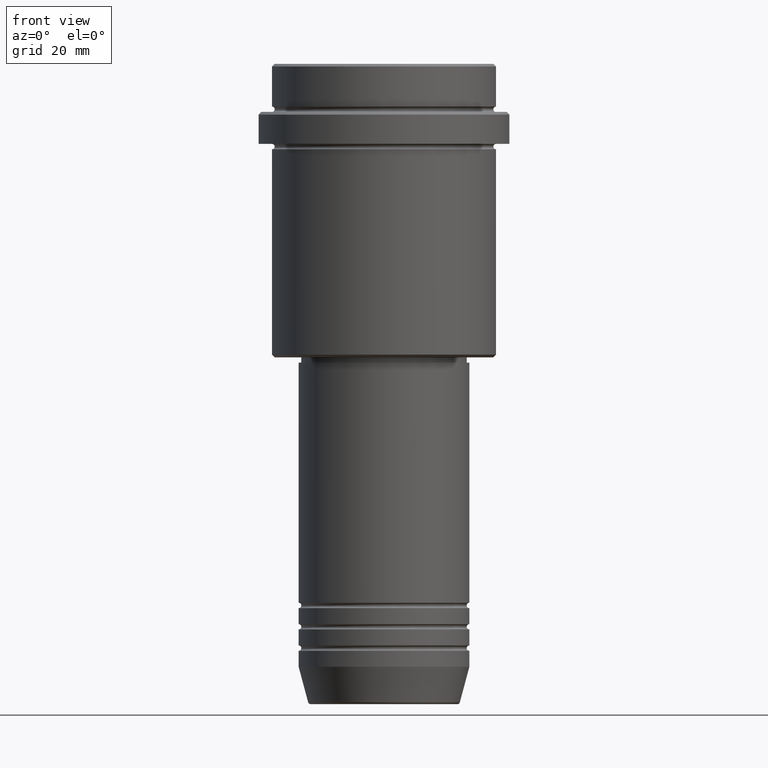
[diagram: clean part render]
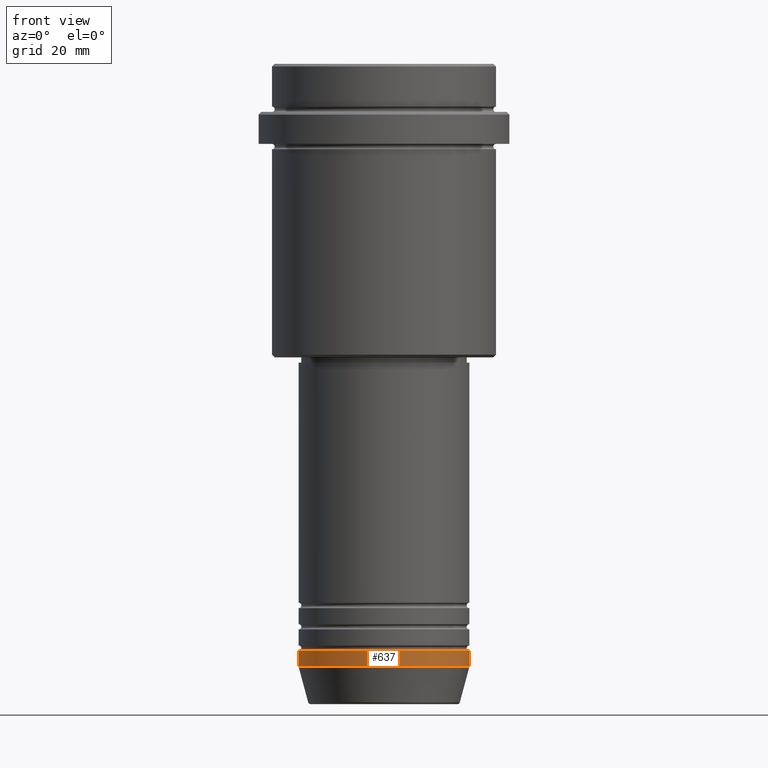
[diagram: same view with one face highlighted and labeled with its STEP entity id]
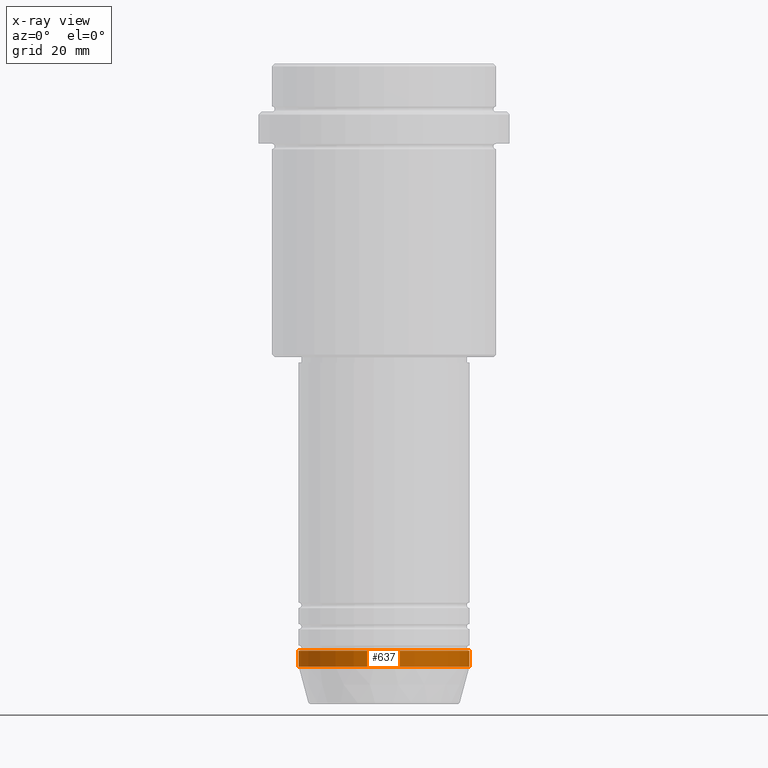
[diagram: x-ray of the same camera — body ghosted, the highlighted face saturated]
A machine part, front view. The second image highlights one B-rep face of the part: STEP entity #637.
The next image is the same camera in x-ray: the body ghosted, the highlighted face saturated — about 0% of this face is hidden behind the body in this view.
In plain terms, the highlighted cylindrical surface (partial cylindrical patch) has radius 16 mm, axis along (-0, -0, 1).
Its self-contained STEP definition (entity closure, byte-faithful):
#3 = DIRECTION ( 'NONE',  ( -0.000000000000000000, -0.000000000000000000, 1.000000000000000000 ) ) ;
#7 = ORIENTED_EDGE ( 'NONE', *, *, #71, .F. ) ;
#10 = DIRECTION ( 'NONE',  ( -0.000000000000000000, -0.000000000000000000, 1.000000000000000000 ) ) ;
#71 = EDGE_CURVE ( 'NONE', #1416, #1305, #487, .T. ) ;
#78 = ORIENTED_EDGE ( 'NONE', *, *, #708, .T. ) ;
#185 = VERTEX_POINT ( 'NONE', #636 ) ;
#207 = ORIENTED_EDGE ( 'NONE', *, *, #309, .F. ) ;
#210 = FACE_OUTER_BOUND ( 'NONE', #462, .T. ) ;
#289 = CIRCLE ( 'NONE', #473, 16.00000000000000000 ) ;
#309 = EDGE_CURVE ( 'NONE', #1305, #185, #289, .T. ) ;
#318 = CYLINDRICAL_SURFACE ( 'NONE', #834, 16.00000000000000000 ) ;
#435 = CARTESIAN_POINT ( 'NONE',  ( 0.000000000000000000, 0.000000000000000000, 0.000000000000000000 ) ) ;
#457 = CARTESIAN_POINT ( 'NONE',  ( -16.00000000000000000, 1.959434878635765131E-15, -110.0000000000000000 ) ) ;
#462 = EDGE_LOOP ( 'NONE', ( #7, #1409, #78, #207 ) ) ;
#473 = AXIS2_PLACEMENT_3D ( 'NONE', #1258, #800, #710 ) ;
#487 = LINE ( 'NONE', #797, #1118 ) ;
#543 = DIRECTION ( 'NONE',  ( 1.000000000000000000, 0.000000000000000000, 0.000000000000000000 ) ) ;
#577 = DIRECTION ( 'NONE',  ( -0.000000000000000000, -0.000000000000000000, 1.000000000000000000 ) ) ;
#636 = CARTESIAN_POINT ( 'NONE',  ( 16.00000000000000000, 0.000000000000000000, -110.0000000000000000 ) ) ;
#637 = ADVANCED_FACE ( 'NONE', ( #210 ), #318, .T. ) ;
#708 = EDGE_CURVE ( 'NONE', #1322, #185, #987, .T. ) ;
#710 = DIRECTION ( 'NONE',  ( 1.000000000000000000, 0.000000000000000000, 0.000000000000000000 ) ) ;
#732 = CARTESIAN_POINT ( 'NONE',  ( -16.00000000000000000, 1.959434878635765131E-15, -113.0000000000000000 ) ) ;
#797 = CARTESIAN_POINT ( 'NONE',  ( -16.00000000000000000, 1.959434878635765131E-15, 0.000000000000000000 ) ) ;
#800 = DIRECTION ( 'NONE',  ( -0.000000000000000000, -0.000000000000000000, 1.000000000000000000 ) ) ;
#814 = VECTOR ( 'NONE', #3, 1000.000000000000000 ) ;
#834 = AXIS2_PLACEMENT_3D ( 'NONE', #435, #10, #882 ) ;
#877 = CARTESIAN_POINT ( 'NONE',  ( 16.00000000000000000, 0.000000000000000000, -113.0000000000000000 ) ) ;
#882 = DIRECTION ( 'NONE',  ( 1.000000000000000000, 0.000000000000000000, 0.000000000000000000 ) ) ;
#966 = CARTESIAN_POINT ( 'NONE',  ( 0.000000000000000000, 0.000000000000000000, -113.0000000000000000 ) ) ;
#976 = CIRCLE ( 'NONE', #1206, 16.00000000000000000 ) ;
#987 = LINE ( 'NONE', #1111, #814 ) ;
#1099 = EDGE_CURVE ( 'NONE', #1416, #1322, #976, .T. ) ;
#1111 = CARTESIAN_POINT ( 'NONE',  ( 16.00000000000000000, 0.000000000000000000, 0.000000000000000000 ) ) ;
#1118 = VECTOR ( 'NONE', #577, 1000.000000000000000 ) ;
#1206 = AXIS2_PLACEMENT_3D ( 'NONE', #966, #1397, #543 ) ;
#1258 = CARTESIAN_POINT ( 'NONE',  ( 0.000000000000000000, 0.000000000000000000, -110.0000000000000000 ) ) ;
#1305 = VERTEX_POINT ( 'NONE', #457 ) ;
#1322 = VERTEX_POINT ( 'NONE', #877 ) ;
#1397 = DIRECTION ( 'NONE',  ( -0.000000000000000000, -0.000000000000000000, 1.000000000000000000 ) ) ;
#1409 = ORIENTED_EDGE ( 'NONE', *, *, #1099, .T. ) ;
#1416 = VERTEX_POINT ( 'NONE', #732 ) ;